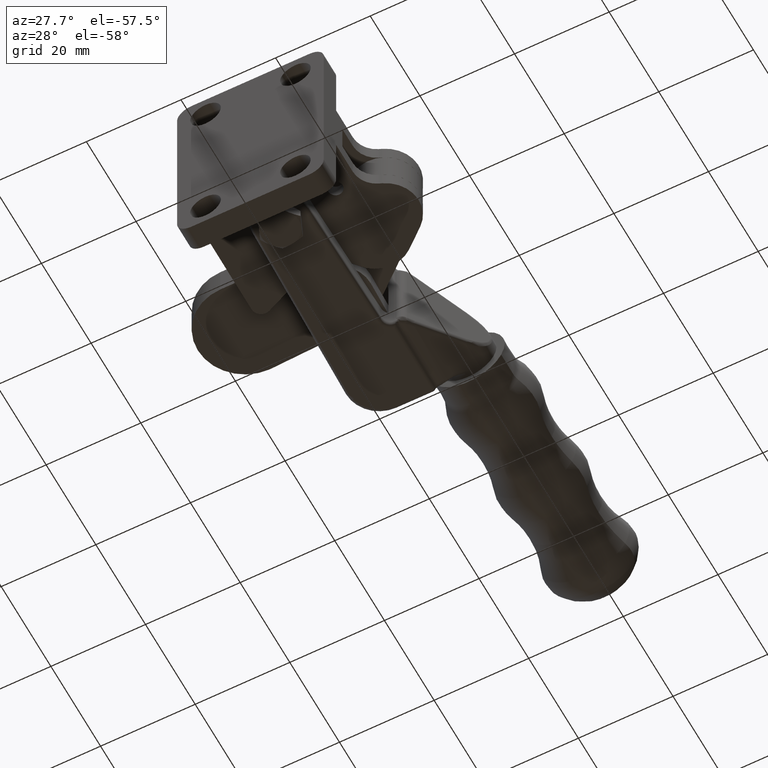
[diagram: clean part render]
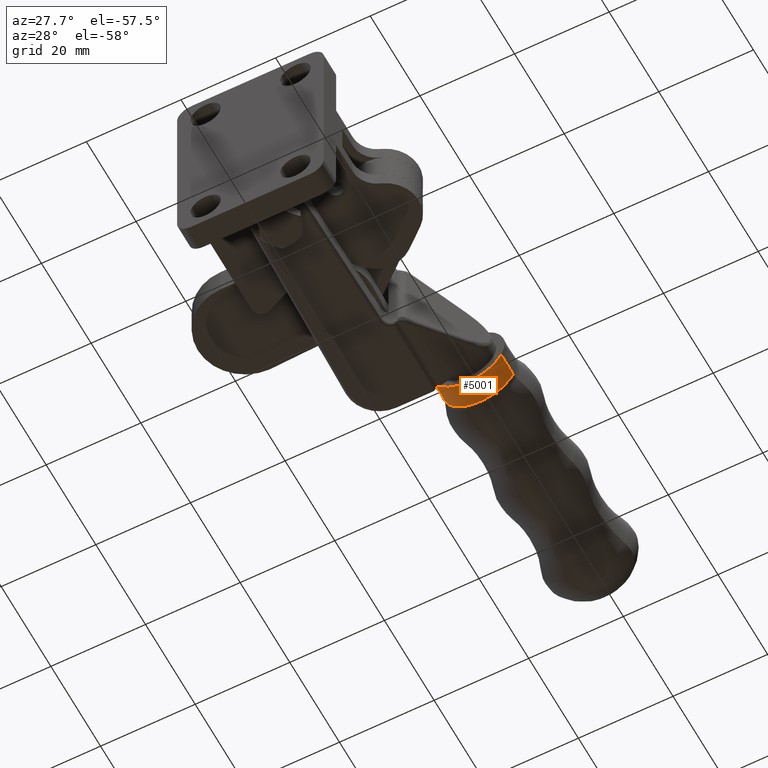
[diagram: same view with one face highlighted and labeled with its STEP entity id]
A machine part, auxiliary view. The second image highlights one B-rep face of the part: STEP entity #5001.
In plain terms, the highlighted conical surface has half-angle 0.004 deg.
Its self-contained STEP definition (entity closure, byte-faithful):
#162 = CARTESIAN_POINT ( 'NONE',  ( 13.90601936498596200, 49.04800618155724100, 22.72657495178282600 ) ) ;
#708 = DIRECTION ( 'NONE',  ( 0.003487045070370157400, -0.9999939197769097700, -3.042841388386962800E-005 ) ) ;
#870 = DIRECTION ( 'NONE',  ( -0.9044394459772413500, -0.003095491135002300300, 0.4265907951362919400 ) ) ;
#922 = CARTESIAN_POINT ( 'NONE',  ( 6.892938398302202800, 49.02400354649086700, 26.03438709911822700 ) ) ;
#1072 = ORIENTED_EDGE ( 'NONE', *, *, #8761, .F. ) ;
#1124 = ORIENTED_EDGE ( 'NONE', *, *, #7097, .T. ) ;
#1389 = ORIENTED_EDGE ( 'NONE', *, *, #8437, .T. ) ;
#2073 = DIRECTION ( 'NONE',  ( 0.003422532065413858600, -0.9999941431199791400, 4.519185069842600200E-017 ) ) ;
#2077 = CARTESIAN_POINT ( 'NONE',  ( 13.88922469435386200, 53.95506678661188700, 22.72657495178282600 ) ) ;
#2300 = CIRCLE ( 'NONE', #6743, 7.753713559004896000 ) ;
#2781 = DIRECTION ( 'NONE',  ( -0.9044394459772412400, -0.003095491135002123300, 0.4265907951362920000 ) ) ;
#2803 = DIRECTION ( 'NONE',  ( 0.9044394459772412400, 0.003095491135002123300, -0.4265907951362920600 ) ) ;
#2854 = VERTEX_POINT ( 'NONE', #6570 ) ;
#3034 = VECTOR ( 'NONE', #6065, 1000.000000000000100 ) ;
#3278 = VERTEX_POINT ( 'NONE', #922 ) ;
#3376 = EDGE_LOOP ( 'NONE', ( #1072, #8175, #1389, #1124 ) ) ;
#3822 = VERTEX_POINT ( 'NONE', #5917 ) ;
#4663 = AXIS2_PLACEMENT_3D ( 'NONE', #162, #5063, #870 ) ;
#5001 = ADVANCED_FACE ( 'NONE', ( #7785 ), #5200, .T. ) ;
#5025 = VECTOR ( 'NONE', #708, 1000.000000000000100 ) ;
#5063 = DIRECTION ( 'NONE',  ( -0.003422532065413858600, 0.9999941431199791400, -4.519185069842600200E-017 ) ) ;
#5072 = VERTEX_POINT ( 'NONE', #7092 ) ;
#5200 = CONICAL_SURFACE ( 'NONE', #8785, 7.753713559004895100, 7.132927915145432000E-005 ) ;
#5245 = LINE ( 'NONE', #8408, #5025 ) ;
#5255 = CIRCLE ( 'NONE', #4663, 7.754063578151219700 ) ;
#5360 = CARTESIAN_POINT ( 'NONE',  ( 6.876460298781249300, 53.93106523502664400, 26.03423778417777300 ) ) ;
#5917 = CARTESIAN_POINT ( 'NONE',  ( 6.876460298781249300, 53.93106523502664400, 26.03423778417777300 ) ) ;
#6065 = DIRECTION ( 'NONE',  ( 0.003358019043044174000, -0.9999943613752119200, 3.042841388396002000E-005 ) ) ;
#6570 = CARTESIAN_POINT ( 'NONE',  ( 20.91910033169303800, 49.07200881662369300, 19.41876280443642600 ) ) ;
#6728 = LINE ( 'NONE', #5360, #3034 ) ;
#6743 = AXIS2_PLACEMENT_3D ( 'NONE', #2077, #6936, #2781 ) ;
#6936 = DIRECTION ( 'NONE',  ( -0.003422532065413858600, 0.9999941431199791400, -4.519185069842600200E-017 ) ) ;
#6965 = CARTESIAN_POINT ( 'NONE',  ( 13.88922469435386200, 53.95506678661188700, 22.72657495178282600 ) ) ;
#7092 = CARTESIAN_POINT ( 'NONE',  ( 20.90198908992647000, 53.97906833819713800, 19.41891211938788000 ) ) ;
#7097 = EDGE_CURVE ( 'NONE', #2854, #3278, #5255, .T. ) ;
#7785 = FACE_OUTER_BOUND ( 'NONE', #3376, .T. ) ;
#7858 = EDGE_CURVE ( 'NONE', #5072, #3822, #2300, .T. ) ;
#8175 = ORIENTED_EDGE ( 'NONE', *, *, #7858, .F. ) ;
#8408 = CARTESIAN_POINT ( 'NONE',  ( 20.90198908992647000, 53.97906833819713800, 19.41891211938788000 ) ) ;
#8437 = EDGE_CURVE ( 'NONE', #5072, #2854, #5245, .T. ) ;
#8761 = EDGE_CURVE ( 'NONE', #3822, #3278, #6728, .T. ) ;
#8785 = AXIS2_PLACEMENT_3D ( 'NONE', #6965, #2073, #2803 ) ;